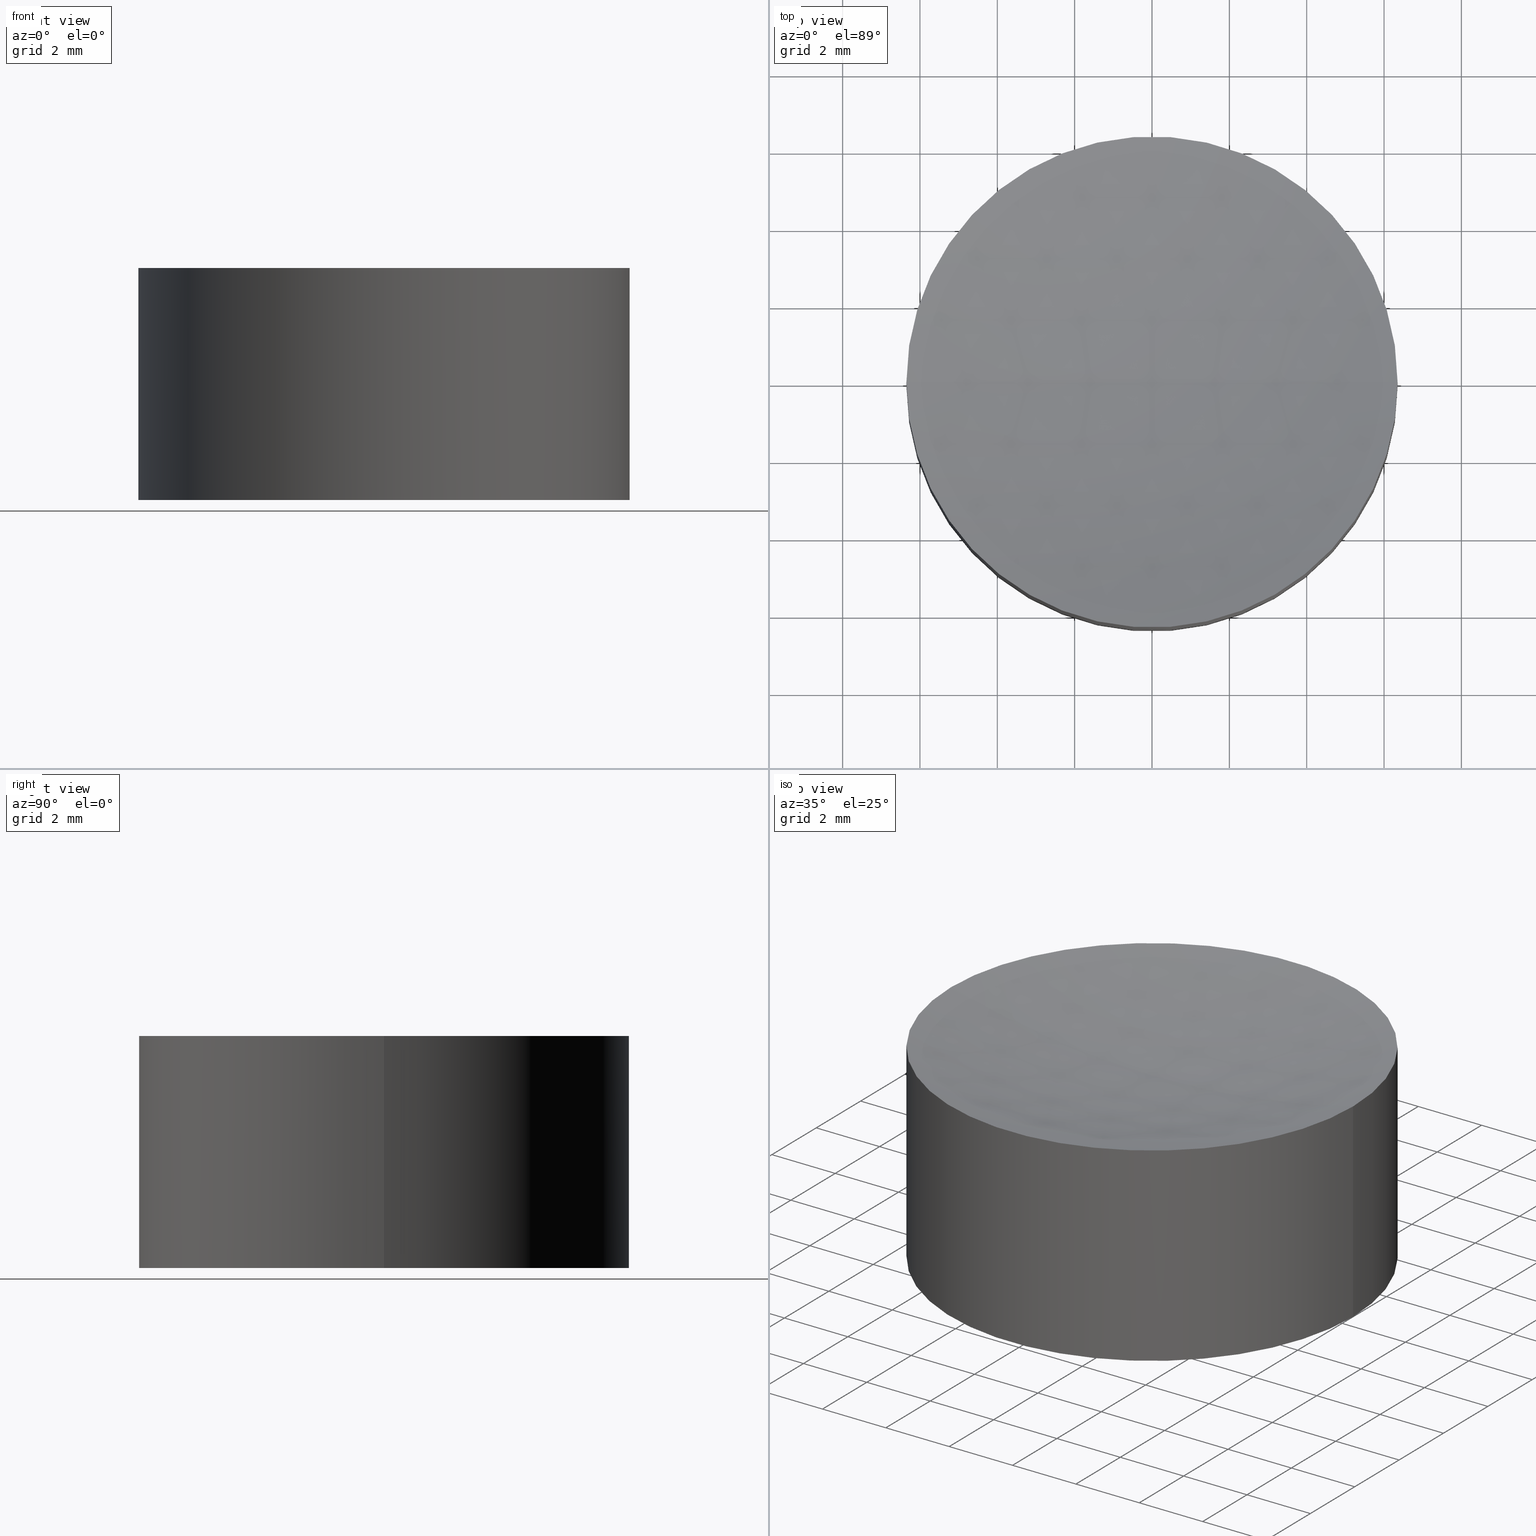
[diagram: canonical four-view strip — front | top / right | iso, engineering-drawing reading convention]
A machine part, canonical four-view strip (front | top / right | iso — engineering-drawing reading convention). The complete STEP part file that produces these views, byte-faithful:
ISO-10303-21;
HEADER;
FILE_DESCRIPTION (( 'STEP AP203' ),
    '1' );
FILE_NAME ('010-1101T6_UVFS_PCV_window.STEP',
    '2021-02-25T10:29:44',
    ( '' ),
    ( '' ),
    'SwSTEP 2.0',
    'SolidWorks 2019',
    '' );
FILE_SCHEMA (( 'CONFIG_CONTROL_DESIGN' ));
ENDSEC;

DATA;
#1 = CARTESIAN_POINT ( 'NONE',  ( -6.349999999999997868, 0.000000000000000000, 5.999999999999998224 ) ) ;
#2 = PERSON ( 'UNSPECIFIED', 'UNSPECIFIED', 'UNSPECIFIED', ('UNSPECIFIED'), ('UNSPECIFIED'), ('UNSPECIFIED') ) ;
#3 = LINE ( 'NONE', #119, #201 ) ;
#4 = LINE ( 'NONE', #68, #38 ) ;
#5 = APPROVAL ( #34, 'UNSPECIFIED' ) ;
#6 = DIRECTION ( 'NONE',  ( -0.000000000000000000, -0.000000000000000000, -1.000000000000000000 ) ) ;
#7 = FACE_OUTER_BOUND ( 'NONE', #169, .T. ) ;
#8 = EDGE_CURVE ( 'NONE', #54, #79, #3, .T. ) ;
#9 = CARTESIAN_POINT ( 'NONE',  ( 0.000000000000000000, 0.000000000000000000, 6.000000000000000000 ) ) ;
#10 = DIRECTION ( 'NONE',  ( 1.000000000000000000, 0.000000000000000000, 0.000000000000000000 ) ) ;
#11 = APPLICATION_PROTOCOL_DEFINITION ( 'international standard', 'config_control_design', 1994, #190 ) ;
#12 =( GEOMETRIC_REPRESENTATION_CONTEXT ( 3 ) GLOBAL_UNCERTAINTY_ASSIGNED_CONTEXT ( ( #141 ) ) GLOBAL_UNIT_ASSIGNED_CONTEXT ( ( #125, #197, #83 ) ) REPRESENTATION_CONTEXT ( 'NONE', 'WORKASPACE' ) );
#13 = SPHERICAL_SURFACE ( 'NONE', #159, 25.00000000000000355 ) ;
#14 = DATE_TIME_ROLE ( 'creation_date' ) ;
#15 = AXIS2_PLACEMENT_3D ( 'NONE', #137, #192, #86 ) ;
#16 = CC_DESIGN_PERSON_AND_ORGANIZATION_ASSIGNMENT ( #32, #142, ( #172 ) ) ;
#17 = EDGE_LOOP ( 'NONE', ( #151, #130 ) ) ;
#18 = APPROVAL ( #163, 'UNSPECIFIED' ) ;
#19 = ORIENTED_EDGE ( 'NONE', *, *, #97, .T. ) ;
#20 = CIRCLE ( 'NONE', #146, 6.349999999999999645 ) ;
#21 = CC_DESIGN_SECURITY_CLASSIFICATION ( #165, ( #76 ) ) ;
#22 = EDGE_LOOP ( 'NONE', ( #78, #93, #194 ) ) ;
#23 = CYLINDRICAL_SURFACE ( 'NONE', #155, 6.349999999999999645 ) ;
#24 = CC_DESIGN_PERSON_AND_ORGANIZATION_ASSIGNMENT ( #37, #170, ( #165 ) ) ;
#25 = DIRECTION ( 'NONE',  ( 0.000000000000000000, 0.000000000000000000, 1.000000000000000000 ) ) ;
#26 = PERSON_AND_ORGANIZATION_ROLE ( 'creator' ) ;
#27 = DIRECTION ( 'NONE',  ( 0.000000000000000000, 1.000000000000000000, -0.000000000000000000 ) ) ;
#28 = CC_DESIGN_PERSON_AND_ORGANIZATION_ASSIGNMENT ( #184, #26, ( #76 ) ) ;
#29 = DIRECTION ( 'NONE',  ( 1.000000000000000000, 1.224646799147353207E-16, 0.000000000000000000 ) ) ;
#30 = PERSON_AND_ORGANIZATION_ROLE ( 'design_supplier' ) ;
#31 = AXIS2_PLACEMENT_3D ( 'NONE', #65, #134, #53 ) ;
#32 = PERSON_AND_ORGANIZATION ( #2, #124 ) ;
#33 = MANIFOLD_SOLID_BREP ( 'Cut-Revolve1', #135 ) ;
#34 = APPROVAL_STATUS ( 'not_yet_approved' ) ;
#35 = APPROVAL_PERSON_ORGANIZATION ( #150, #5, #148 ) ;
#36 = VERTEX_POINT ( 'NONE', #1 ) ;
#37 = PERSON_AND_ORGANIZATION ( #2, #124 ) ;
#38 = VECTOR ( 'NONE', #6, 1000.000000000000000 ) ;
#39 = DIRECTION ( 'NONE',  ( 1.000000000000000000, 0.000000000000000000, 0.000000000000000000 ) ) ;
#40 = ADVANCED_BREP_SHAPE_REPRESENTATION ( '010-1101T6_UVFS_PCV_window', ( #33, #174 ), #12 ) ;
#41 = DIRECTION ( 'NONE',  ( 0.000000000000000000, 0.000000000000000000, 1.000000000000000000 ) ) ;
#42 = DIRECTION ( 'NONE',  ( 0.000000000000000000, -1.000000000000000000, -0.000000000000000000 ) ) ;
#43 = CARTESIAN_POINT ( 'NONE',  ( 4.336808689942017736E-15, 0.000000000000000000, 30.18010545882710005 ) ) ;
#44 = CC_DESIGN_PERSON_AND_ORGANIZATION_ASSIGNMENT ( #47, #30, ( #76 ) ) ;
#45 = DATE_AND_TIME ( #112, #72 ) ;
#46 = DIRECTION ( 'NONE',  ( 1.224646799147353207E-16, -1.000000000000000000, 0.000000000000000000 ) ) ;
#47 = PERSON_AND_ORGANIZATION ( #2, #124 ) ;
#48 = PERSON_AND_ORGANIZATION ( #2, #124 ) ;
#49 = EDGE_CURVE ( 'NONE', #147, #79, #102, .T. ) ;
#50 = EDGE_CURVE ( 'NONE', #36, #147, #4, .T. ) ;
#51 = SHAPE_DEFINITION_REPRESENTATION ( #152, #40 ) ;
#52 = AXIS2_PLACEMENT_3D ( 'NONE', #140, #41, #157 ) ;
#53 = DIRECTION ( 'NONE',  ( 1.000000000000000000, 0.000000000000000000, 0.000000000000000000 ) ) ;
#54 = VERTEX_POINT ( 'NONE', #105 ) ;
#55 = CC_DESIGN_DATE_AND_TIME_ASSIGNMENT ( #164, #14, ( #62 ) ) ;
#56 = CARTESIAN_POINT ( 'NONE',  ( 5.867617188876209455E-15, 0.000000000000000000, 5.180105458827095610 ) ) ;
#57 = CARTESIAN_POINT ( 'NONE',  ( 4.336808689942017736E-15, 0.000000000000000000, 30.18010545882710005 ) ) ;
#58 = PLANE ( 'NONE',  #52 ) ;
#59 = ADVANCED_FACE ( 'NONE', ( #177 ), #175, .T. ) ;
#60 = LOCAL_TIME ( 12, 29, 44.00000000000000000, #113 ) ;
#61 = APPROVAL_ROLE ( '' ) ;
#62 = PRODUCT_DEFINITION ( 'UNKNOWN', '', #76, #183 ) ;
#63 = SECURITY_CLASSIFICATION_LEVEL ( 'unclassified' ) ;
#64 = LOCAL_TIME ( 12, 29, 44.00000000000000000, #187 ) ;
#65 = CARTESIAN_POINT ( 'NONE',  ( 0.000000000000000000, 0.000000000000000000, 0.000000000000000000 ) ) ;
#66 = COORDINATED_UNIVERSAL_TIME_OFFSET ( 2, 0, .AHEAD. ) ;
#67 = ORIENTED_EDGE ( 'NONE', *, *, #8, .T. ) ;
#68 = CARTESIAN_POINT ( 'NONE',  ( -6.349999999999999645, 0.000000000000000000, 6.000000000000000000 ) ) ;
#69 = DIRECTION ( 'NONE',  ( -1.000000000000000000, 0.000000000000000000, 0.000000000000000000 ) ) ;
#70 = DIRECTION ( 'NONE',  ( -0.000000000000000000, -0.000000000000000000, -1.000000000000000000 ) ) ;
#71 = APPLICATION_PROTOCOL_DEFINITION ( 'international standard', 'config_control_design', 1994, #75 ) ;
#72 = LOCAL_TIME ( 12, 29, 44.00000000000000000, #145 ) ;
#73 = CARTESIAN_POINT ( 'NONE',  ( 4.336808689942017736E-15, 0.000000000000000000, 30.18010545882710005 ) ) ;
#74 = PERSON_AND_ORGANIZATION ( #2, #124 ) ;
#75 = APPLICATION_CONTEXT ( 'configuration controlled 3d designs of mechanical parts and assemblies' ) ;
#76 = PRODUCT_DEFINITION_FORMATION_WITH_SPECIFIED_SOURCE ( 'ANY', '', #172, .NOT_KNOWN. ) ;
#77 = CC_DESIGN_PERSON_AND_ORGANIZATION_ASSIGNMENT ( #48, #198, ( #62 ) ) ;
#78 = ORIENTED_EDGE ( 'NONE', *, *, #97, .F. ) ;
#79 = VERTEX_POINT ( 'NONE', #109 ) ;
#80 = AXIS2_PLACEMENT_3D ( 'NONE', #43, #98, #82 ) ;
#81 = EDGE_LOOP ( 'NONE', ( #121, #156, #133 ) ) ;
#82 = DIRECTION ( 'NONE',  ( 1.000000000000000000, 0.000000000000000000, 0.000000000000000000 ) ) ;
#83 =( NAMED_UNIT ( * ) SI_UNIT ( $, .STERADIAN. ) SOLID_ANGLE_UNIT ( ) );
#84 = APPROVAL_PERSON_ORGANIZATION ( #128, #18, #61 ) ;
#85 = DIRECTION ( 'NONE',  ( -0.000000000000000000, -0.000000000000000000, -1.000000000000000000 ) ) ;
#86 = DIRECTION ( 'NONE',  ( -1.000000000000000000, 0.000000000000000000, 0.000000000000000000 ) ) ;
#87 = CC_DESIGN_APPROVAL ( #5, ( #165 ) ) ;
#88 = EDGE_CURVE ( 'NONE', #79, #147, #20, .T. ) ;
#89 = AXIS2_PLACEMENT_3D ( 'NONE', #123, #85, #39 ) ;
#90 = CALENDAR_DATE ( 2021, 25, 2 ) ;
#91 = DATE_AND_TIME ( #90, #103 ) ;
#92 = EDGE_CURVE ( 'NONE', #54, #120, #149, .T. ) ;
#93 = ORIENTED_EDGE ( 'NONE', *, *, #176, .T. ) ;
#94 = AXIS2_PLACEMENT_3D ( 'NONE', #99, #70, #161 ) ;
#95 = DIRECTION ( 'NONE',  ( 1.000000000000000000, 0.000000000000000000, 0.000000000000000000 ) ) ;
#96 = APPROVAL_DATE_TIME ( #167, #185 ) ;
#97 = EDGE_CURVE ( 'NONE', #36, #54, #181, .T. ) ;
#98 = DIRECTION ( 'NONE',  ( 0.000000000000000000, -1.000000000000000000, -0.000000000000000000 ) ) ;
#99 = CARTESIAN_POINT ( 'NONE',  ( 4.336808689942017736E-15, 0.000000000000000000, 5.999999999999998224 ) ) ;
#100 = ORIENTED_EDGE ( 'NONE', *, *, #50, .T. ) ;
#101 = ORIENTED_EDGE ( 'NONE', *, *, #8, .F. ) ;
#102 = CIRCLE ( 'NONE', #31, 6.349999999999999645 ) ;
#103 = LOCAL_TIME ( 12, 29, 44.00000000000000000, #66 ) ;
#104 = ORIENTED_EDGE ( 'NONE', *, *, #50, .F. ) ;
#105 = CARTESIAN_POINT ( 'NONE',  ( 6.350000000000006750, 7.776507174585701038E-16, 5.999999999999998224 ) ) ;
#106 = ORIENTED_EDGE ( 'NONE', *, *, #49, .T. ) ;
#107 = LOCAL_TIME ( 12, 29, 44.00000000000000000, #168 ) ;
#108 = CARTESIAN_POINT ( 'NONE',  ( 4.336808689942017736E-15, 0.000000000000000000, 30.18010545882710005 ) ) ;
#109 = CARTESIAN_POINT ( 'NONE',  ( 6.349999999999999645, 7.776507174585692163E-16, 0.000000000000000000 ) ) ;
#110 = PRODUCT_RELATED_PRODUCT_CATEGORY ( 'detail', '', ( #172 ) ) ;
#111 = CARTESIAN_POINT ( 'NONE',  ( 0.000000000000000000, 0.000000000000000000, 0.000000000000000000 ) ) ;
#112 = CALENDAR_DATE ( 2021, 25, 2 ) ;
#113 = COORDINATED_UNIVERSAL_TIME_OFFSET ( 2, 0, .AHEAD. ) ;
#114 = CALENDAR_DATE ( 2021, 25, 2 ) ;
#115 = APPROVAL_ROLE ( '' ) ;
#116 = CIRCLE ( 'NONE', #94, 6.350000000000002309 ) ;
#117 = DATE_AND_TIME ( #188, #107 ) ;
#118 = ADVANCED_FACE ( 'NONE', ( #138 ), #58, .F. ) ;
#119 = CARTESIAN_POINT ( 'NONE',  ( 6.349999999999999645, 7.776507174585692163E-16, 6.000000000000000000 ) ) ;
#120 = VERTEX_POINT ( 'NONE', #56 ) ;
#121 = ORIENTED_EDGE ( 'NONE', *, *, #176, .F. ) ;
#122 = CARTESIAN_POINT ( 'NONE',  ( -6.349999999999999645, 0.000000000000000000, 0.000000000000000000 ) ) ;
#123 = CARTESIAN_POINT ( 'NONE',  ( 4.336808689942017736E-15, 0.000000000000000000, 5.999999999999998224 ) ) ;
#124 = ORGANIZATION ( 'UNSPECIFIED', 'UNSPECIFIED', '' ) ;
#125 =( LENGTH_UNIT ( ) NAMED_UNIT ( * ) SI_UNIT ( .MILLI., .METRE. ) );
#126 = APPROVAL_STATUS ( 'not_yet_approved' ) ;
#127 = MECHANICAL_CONTEXT ( 'NONE', #75, 'mechanical' ) ;
#128 = PERSON_AND_ORGANIZATION ( #2, #124 ) ;
#129 = ADVANCED_FACE ( 'NONE', ( #7 ), #23, .T. ) ;
#130 = ORIENTED_EDGE ( 'NONE', *, *, #88, .F. ) ;
#131 = APPROVAL_DATE_TIME ( #91, #5 ) ;
#132 = ADVANCED_FACE ( 'NONE', ( #160 ), #180, .F. ) ;
#133 = ORIENTED_EDGE ( 'NONE', *, *, #92, .T. ) ;
#134 = DIRECTION ( 'NONE',  ( 0.000000000000000000, 0.000000000000000000, 1.000000000000000000 ) ) ;
#135 = CLOSED_SHELL ( 'NONE', ( #166, #59, #129, #118, #132 ) ) ;
#136 = EDGE_LOOP ( 'NONE', ( #19, #67, #173, #104 ) ) ;
#137 = CARTESIAN_POINT ( 'NONE',  ( 0.000000000000000000, 0.000000000000000000, 6.000000000000000000 ) ) ;
#138 = FACE_OUTER_BOUND ( 'NONE', #17, .T. ) ;
#139 = AXIS2_PLACEMENT_3D ( 'NONE', #57, #46, #29 ) ;
#140 = CARTESIAN_POINT ( 'NONE',  ( 0.000000000000000000, 0.000000000000000000, 0.000000000000000000 ) ) ;
#141 = UNCERTAINTY_MEASURE_WITH_UNIT (LENGTH_MEASURE( 1.000000000000000082E-05 ), #125, 'distance_accuracy_value', 'NONE');
#142 = PERSON_AND_ORGANIZATION_ROLE ( 'design_owner' ) ;
#143 = CALENDAR_DATE ( 2021, 25, 2 ) ;
#144 = CIRCLE ( 'NONE', #139, 25.00000000000000355 ) ;
#145 = COORDINATED_UNIVERSAL_TIME_OFFSET ( 2, 0, .AHEAD. ) ;
#146 = AXIS2_PLACEMENT_3D ( 'NONE', #158, #179, #95 ) ;
#147 = VERTEX_POINT ( 'NONE', #122 ) ;
#148 = APPROVAL_ROLE ( '' ) ;
#149 = CIRCLE ( 'NONE', #191, 25.00000000000000711 ) ;
#150 = PERSON_AND_ORGANIZATION ( #2, #124 ) ;
#151 = ORIENTED_EDGE ( 'NONE', *, *, #49, .F. ) ;
#152 = PRODUCT_DEFINITION_SHAPE ( 'NONE', 'NONE',  #62 ) ;
#153 = DIRECTION ( 'NONE',  ( -0.000000000000000000, -0.000000000000000000, -1.000000000000000000 ) ) ;
#154 = ORIENTED_EDGE ( 'NONE', *, *, #193, .T. ) ;
#155 = AXIS2_PLACEMENT_3D ( 'NONE', #9, #196, #69 ) ;
#156 = ORIENTED_EDGE ( 'NONE', *, *, #193, .F. ) ;
#157 = DIRECTION ( 'NONE',  ( 1.000000000000000000, 0.000000000000000000, -0.000000000000000000 ) ) ;
#158 = CARTESIAN_POINT ( 'NONE',  ( 0.000000000000000000, 0.000000000000000000, 0.000000000000000000 ) ) ;
#159 = AXIS2_PLACEMENT_3D ( 'NONE', #73, #42, #10 ) ;
#160 = FACE_OUTER_BOUND ( 'NONE', #81, .T. ) ;
#161 = DIRECTION ( 'NONE',  ( 1.000000000000000000, 0.000000000000000000, 0.000000000000000000 ) ) ;
#162 = DIRECTION ( 'NONE',  ( 1.000000000000000000, 0.000000000000000000, 0.000000000000000000 ) ) ;
#163 = APPROVAL_STATUS ( 'not_yet_approved' ) ;
#164 = DATE_AND_TIME ( #143, #64 ) ;
#165 = SECURITY_CLASSIFICATION ( '', '', #63 ) ;
#166 = ADVANCED_FACE ( 'NONE', ( #195 ), #13, .F. ) ;
#167 = DATE_AND_TIME ( #114, #60 ) ;
#168 = COORDINATED_UNIVERSAL_TIME_OFFSET ( 2, 0, .AHEAD. ) ;
#169 = EDGE_LOOP ( 'NONE', ( #101, #154, #100, #106 ) ) ;
#170 = PERSON_AND_ORGANIZATION_ROLE ( 'classification_officer' ) ;
#171 = DATE_TIME_ROLE ( 'classification_date' ) ;
#172 = PRODUCT ( '010-1101T6_UVFS_PCV_window', '010-1101T6_UVFS_PCV_window', '', ( #127 ) ) ;
#173 = ORIENTED_EDGE ( 'NONE', *, *, #88, .T. ) ;
#174 = AXIS2_PLACEMENT_3D ( 'NONE', #111, #182, #162 ) ;
#175 = CYLINDRICAL_SURFACE ( 'NONE', #15, 6.349999999999999645 ) ;
#176 = EDGE_CURVE ( 'NONE', #36, #120, #144, .T. ) ;
#177 = FACE_OUTER_BOUND ( 'NONE', #136, .T. ) ;
#178 = CC_DESIGN_APPROVAL ( #185, ( #76 ) ) ;
#179 = DIRECTION ( 'NONE',  ( 0.000000000000000000, 0.000000000000000000, 1.000000000000000000 ) ) ;
#180 = SPHERICAL_SURFACE ( 'NONE', #80, 25.00000000000000355 ) ;
#181 = CIRCLE ( 'NONE', #89, 6.350000000000002309 ) ;
#182 = DIRECTION ( 'NONE',  ( 0.000000000000000000, 0.000000000000000000, 1.000000000000000000 ) ) ;
#183 = DESIGN_CONTEXT ( 'detailed design', #190, 'design' ) ;
#184 = PERSON_AND_ORGANIZATION ( #2, #124 ) ;
#185 = APPROVAL ( #126, 'UNSPECIFIED' ) ;
#186 = APPROVAL_PERSON_ORGANIZATION ( #74, #185, #115 ) ;
#187 = COORDINATED_UNIVERSAL_TIME_OFFSET ( 2, 0, .AHEAD. ) ;
#188 = CALENDAR_DATE ( 2021, 25, 2 ) ;
#189 = CC_DESIGN_DATE_AND_TIME_ASSIGNMENT ( #117, #171, ( #165 ) ) ;
#190 = APPLICATION_CONTEXT ( 'configuration controlled 3d designs of mechanical parts and assemblies' ) ;
#191 = AXIS2_PLACEMENT_3D ( 'NONE', #108, #27, #25 ) ;
#192 = DIRECTION ( 'NONE',  ( -0.000000000000000000, -0.000000000000000000, -1.000000000000000000 ) ) ;
#193 = EDGE_CURVE ( 'NONE', #54, #36, #116, .T. ) ;
#194 = ORIENTED_EDGE ( 'NONE', *, *, #92, .F. ) ;
#195 = FACE_OUTER_BOUND ( 'NONE', #22, .T. ) ;
#196 = DIRECTION ( 'NONE',  ( -0.000000000000000000, -0.000000000000000000, -1.000000000000000000 ) ) ;
#197 =( NAMED_UNIT ( * ) PLANE_ANGLE_UNIT ( ) SI_UNIT ( $, .RADIAN. ) );
#198 = PERSON_AND_ORGANIZATION_ROLE ( 'creator' ) ;
#199 = APPROVAL_DATE_TIME ( #45, #18 ) ;
#200 = CC_DESIGN_APPROVAL ( #18, ( #62 ) ) ;
#201 = VECTOR ( 'NONE', #153, 1000.000000000000000 ) ;
ENDSEC;
END-ISO-10303-21;
